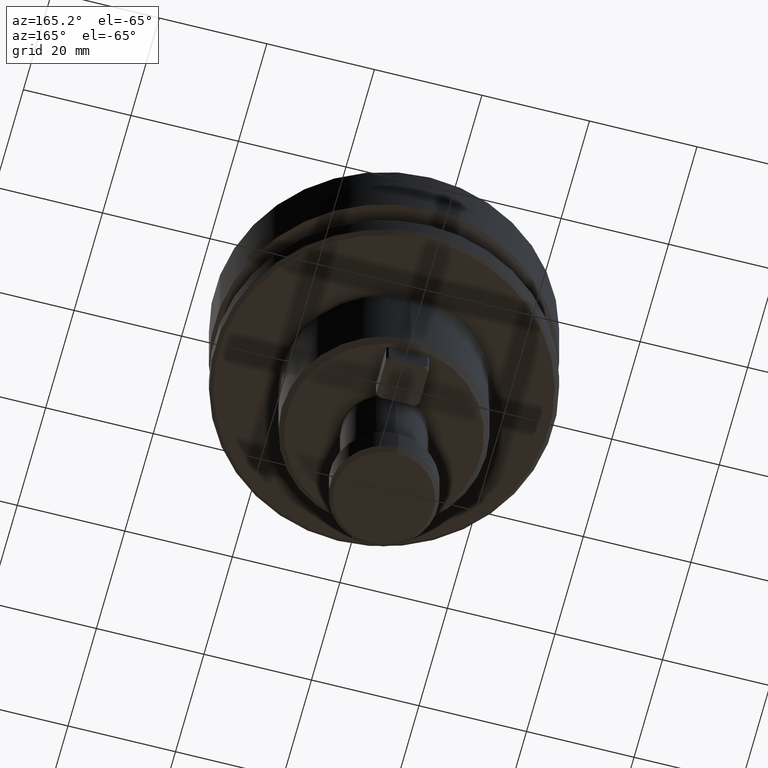
[diagram: clean part render]
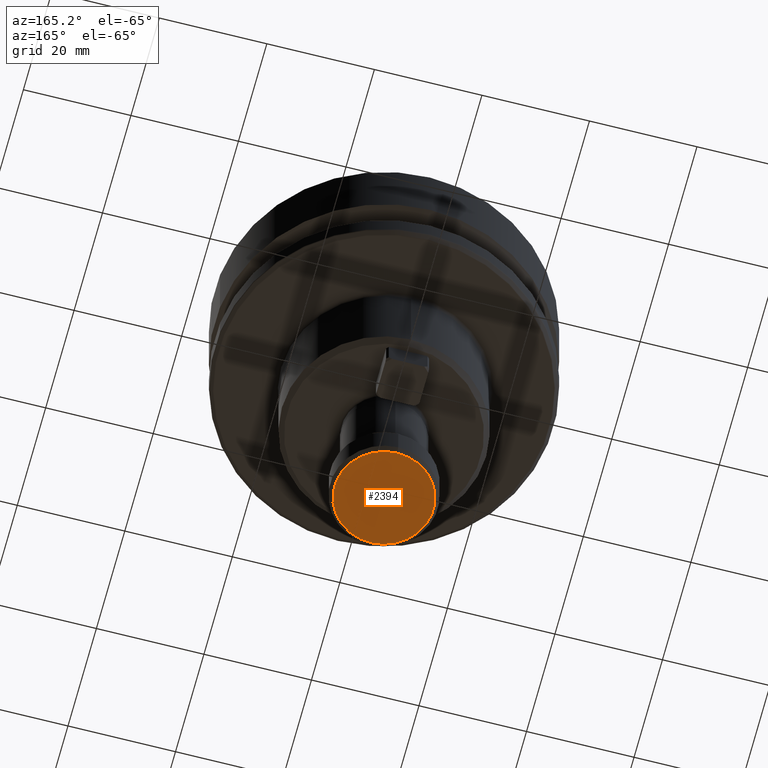
[diagram: same view with one face highlighted and labeled with its STEP entity id]
A machine part, auxiliary view. The second image highlights one B-rep face of the part: STEP entity #2394.
In plain terms, the highlighted planar face has unit normal (0, -0, 1).
Its self-contained STEP definition (entity closure, byte-faithful):
#8 = AXIS2_PLACEMENT_3D ( 'NONE', #76, #2750, #305 ) ;
#31 = DIRECTION ( 'NONE',  ( 0.0000000000000000000, -1.000000000000000000, 0.0000000000000000000 ) ) ;
#76 = CARTESIAN_POINT ( 'NONE',  ( -23.61709746719498100, -2.613875991983150000, -8.761750776703131300 ) ) ;
#282 = DIRECTION ( 'NONE',  ( -0.0000000000000000000, -8.844408930546864500E-017, 1.000000000000000000 ) ) ;
#296 = EDGE_CURVE ( 'NONE', #712, #1548, #1912, .T. ) ;
#305 = DIRECTION ( 'NONE',  ( 0.0000000000000000000, -1.000000000000000000, -8.844408930546864500E-017 ) ) ;
#650 = EDGE_CURVE ( 'NONE', #1548, #712, #2417, .T. ) ;
#654 = AXIS2_PLACEMENT_3D ( 'NONE', #2814, #1732, #31 ) ;
#712 = VERTEX_POINT ( 'NONE', #1662 ) ;
#1181 = FACE_OUTER_BOUND ( 'NONE', #2208, .T. ) ;
#1303 = CARTESIAN_POINT ( 'NONE',  ( -23.61709746719498100, -11.81387599198314200, -8.761750776703131300 ) ) ;
#1439 = PLANE ( 'NONE',  #8 ) ;
#1503 = ORIENTED_EDGE ( 'NONE', *, *, #296, .F. ) ;
#1548 = VERTEX_POINT ( 'NONE', #1303 ) ;
#1634 = CARTESIAN_POINT ( 'NONE',  ( -23.61709746719498100, -2.613875991983147400, -8.761750776703131300 ) ) ;
#1662 = CARTESIAN_POINT ( 'NONE',  ( -23.61709746719498100, 6.586124008016849300, -8.761750776703131300 ) ) ;
#1732 = DIRECTION ( 'NONE',  ( -0.0000000000000000000, -8.844408930546864500E-017, 1.000000000000000000 ) ) ;
#1860 = DIRECTION ( 'NONE',  ( 0.0000000000000000000, -1.000000000000000000, 0.0000000000000000000 ) ) ;
#1912 = CIRCLE ( 'NONE', #654, 9.199999999999995700 ) ;
#2208 = EDGE_LOOP ( 'NONE', ( #2266, #1503 ) ) ;
#2266 = ORIENTED_EDGE ( 'NONE', *, *, #650, .F. ) ;
#2394 = ADVANCED_FACE ( 'NONE', ( #1181 ), #1439, .F. ) ;
#2417 = CIRCLE ( 'NONE', #2708, 9.199999999999995700 ) ;
#2708 = AXIS2_PLACEMENT_3D ( 'NONE', #1634, #282, #1860 ) ;
#2750 = DIRECTION ( 'NONE',  ( 0.0000000000000000000, -8.844408930546864500E-017, 1.000000000000000000 ) ) ;
#2814 = CARTESIAN_POINT ( 'NONE',  ( -23.61709746719498100, -2.613875991983147400, -8.761750776703131300 ) ) ;